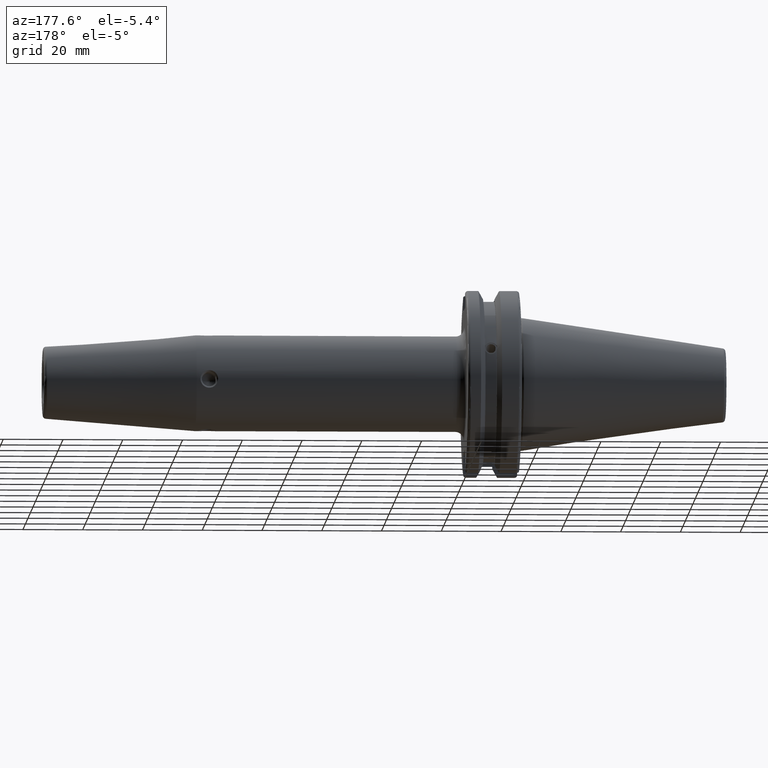
[diagram: clean part render]
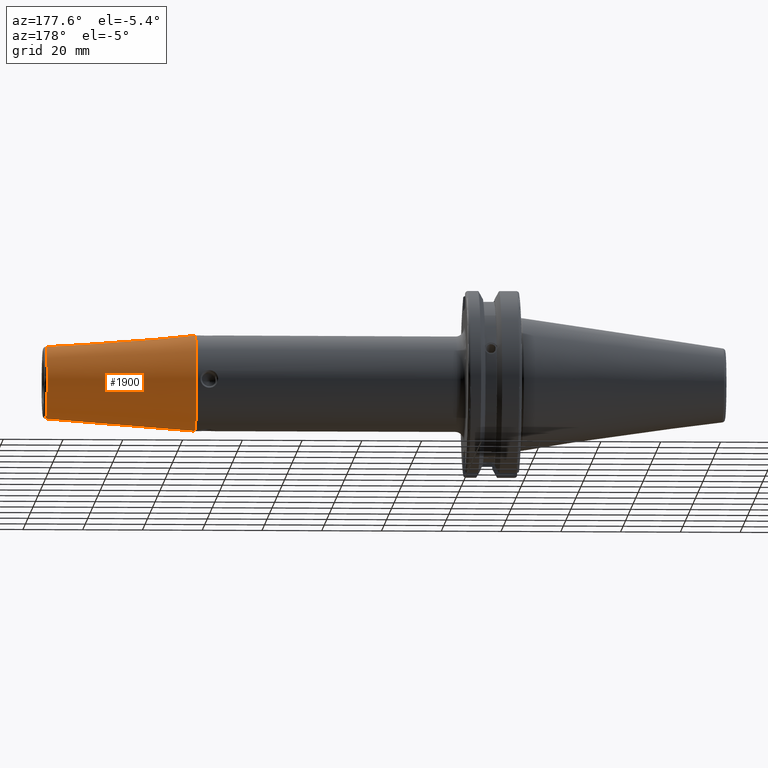
[diagram: same view with one face highlighted and labeled with its STEP entity id]
A machine part, auxiliary view. The second image highlights one B-rep face of the part: STEP entity #1900.
In plain terms, the highlighted conical surface has half-angle 4.5 deg.
Its self-contained STEP definition (entity closure, byte-faithful):
#40=FACE_BOUND('',#272,.T.);
#130=CONICAL_SURFACE('',#2047,14.,0.0785398163397452);
#158=FACE_OUTER_BOUND('',#271,.T.);
#271=EDGE_LOOP('',(#1313,#1314,#1315,#1316,#1317));
#272=EDGE_LOOP('',(#1318,#1319));
#400=LINE('',#3063,#518);
#518=VECTOR('',#2293,14.);
#639=CIRCLE('',#2045,12.0725268420749);
#640=CIRCLE('',#2046,12.0725268420749);
#641=CIRCLE('',#2048,16.);
#726=B_SPLINE_CURVE_WITH_KNOTS('',3,(#2974,#2975,#2976,#2977,#2978,#2979,
#2980,#2981,#2982,#2983),.UNSPECIFIED.,.F.,.F.,(4,2,2,2,4),(0.,0.0748674618662595,
0.149734923732519,0.224614840567834,0.29949475740315),.UNSPECIFIED.);
#727=B_SPLINE_CURVE_WITH_KNOTS('',3,(#2984,#2985,#2986,#2987,#2988,#2989,
#2990,#2991,#2992,#2993,#2994,#2995,#2996,#2997,#2998,#2999,#3000,#3001,
#3002,#3003,#3004,#3005,#3006,#3007,#3008,#3009),.UNSPECIFIED.,.F.,.F.,
(4,2,2,2,2,2,2,2,2,2,2,2,4),(0.29949475740315,0.374374674238465,0.449254591073781,
0.52412205294004,0.5989895148063,0.675303827779073,0.751618140751846,0.827729436244573,
0.903840731737301,0.979952027230028,1.05606332272275,1.13237763569553,1.2086919486683),
 .UNSPECIFIED.);
#783=VERTEX_POINT('',#2972);
#784=VERTEX_POINT('',#2973);
#794=VERTEX_POINT('',#3056);
#795=VERTEX_POINT('',#3058);
#796=VERTEX_POINT('',#3062);
#982=EDGE_CURVE('',#783,#784,#726,.T.);
#983=EDGE_CURVE('',#784,#783,#727,.T.);
#999=EDGE_CURVE('',#794,#795,#639,.T.);
#1000=EDGE_CURVE('',#795,#794,#640,.T.);
#1001=EDGE_CURVE('',#795,#796,#400,.T.);
#1002=EDGE_CURVE('',#796,#796,#641,.T.);
#1313=ORIENTED_EDGE('',*,*,#1000,.F.);
#1314=ORIENTED_EDGE('',*,*,#1001,.T.);
#1315=ORIENTED_EDGE('',*,*,#1002,.T.);
#1316=ORIENTED_EDGE('',*,*,#1001,.F.);
#1317=ORIENTED_EDGE('',*,*,#999,.F.);
#1318=ORIENTED_EDGE('',*,*,#982,.T.);
#1319=ORIENTED_EDGE('',*,*,#983,.T.);
#1900=ADVANCED_FACE('',(#158,#40),#130,.T.);
#2045=AXIS2_PLACEMENT_3D('',#3059,#2287,#2288);
#2046=AXIS2_PLACEMENT_3D('',#3060,#2289,#2290);
#2047=AXIS2_PLACEMENT_3D('',#3061,#2291,#2292);
#2048=AXIS2_PLACEMENT_3D('',#3064,#2294,#2295);
#2287=DIRECTION('center_axis',(1.,0.,0.));
#2288=DIRECTION('ref_axis',(0.,-1.,3.06161699786838E-17));
#2289=DIRECTION('center_axis',(1.,0.,0.));
#2290=DIRECTION('ref_axis',(0.,-1.,3.06161699786838E-17));
#2291=DIRECTION('center_axis',(-1.,0.,0.));
#2292=DIRECTION('ref_axis',(0.,1.,0.));
#2293=DIRECTION('',(-0.996917333733128,-0.0784590957278454,-9.60846804471016E-18));
#2294=DIRECTION('center_axis',(1.,0.,0.));
#2295=DIRECTION('ref_axis',(0.,0.,-1.));
#2972=CARTESIAN_POINT('',(114.020153726902,-9.53903033601559,12.367313853378));
#2973=CARTESIAN_POINT('',(116.,-10.9339038400509,10.9339038400509));
#2974=CARTESIAN_POINT('Ctrl Pts',(114.020153726902,-9.53903033601559,12.367313853378));
#2975=CARTESIAN_POINT('Ctrl Pts',(114.268942628459,-9.52707189096271,12.3518097782301));
#2976=CARTESIAN_POINT('Ctrl Pts',(114.534382625529,-9.5538566693808,12.3050854651883));
#2977=CARTESIAN_POINT('Ctrl Pts',(115.022484776038,-9.68972517788116,12.1492859372061));
#2978=CARTESIAN_POINT('Ctrl Pts',(115.245133549922,-9.79856818182654,12.0399590698605));
#2979=CARTESIAN_POINT('Ctrl Pts',(115.596433220623,-10.0525139804134,11.7924540985275));
#2980=CARTESIAN_POINT('Ctrl Pts',(115.748633321661,-10.2145816131568,11.6376583005966));
#2981=CARTESIAN_POINT('Ctrl Pts',(115.950417994528,-10.5671484545692,11.2967535179709));
#2982=CARTESIAN_POINT('Ctrl Pts',(116.,-10.7574101834878,11.110397496614));
#2983=CARTESIAN_POINT('Ctrl Pts',(116.,-10.9339038400509,10.9339038400509));
#2984=CARTESIAN_POINT('Ctrl Pts',(116.,-10.9339038400509,10.9339038400509));
#2985=CARTESIAN_POINT('Ctrl Pts',(116.,-11.110397496614,10.7574101834878));
#2986=CARTESIAN_POINT('Ctrl Pts',(115.950417994528,-11.2967535179709,10.5671484545692));
#2987=CARTESIAN_POINT('Ctrl Pts',(115.748633321661,-11.6376583005967,10.2145816131568));
#2988=CARTESIAN_POINT('Ctrl Pts',(115.596433220623,-11.7924540985275,10.0525139804134));
#2989=CARTESIAN_POINT('Ctrl Pts',(115.245133549922,-12.0399590698605,9.79856818182653));
#2990=CARTESIAN_POINT('Ctrl Pts',(115.022484776038,-12.1492859372061,9.68972517788116));
#2991=CARTESIAN_POINT('Ctrl Pts',(114.534382625529,-12.3050854651883,9.55385666938079));
#2992=CARTESIAN_POINT('Ctrl Pts',(114.268942628459,-12.3518097782301,9.5270718909627));
#2993=CARTESIAN_POINT('Ctrl Pts',(113.76655685552,-12.3831175525244,9.5512198839939));
#2994=CARTESIAN_POINT('Ctrl Pts',(113.496366470126,-12.3686524410359,9.60521638238081));
#2995=CARTESIAN_POINT('Ctrl Pts',(112.999326971937,-12.270839084647,9.79269870491093));
#2996=CARTESIAN_POINT('Ctrl Pts',(112.772421045976,-12.1872570327809,9.92591175183341));
#2997=CARTESIAN_POINT('Ctrl Pts',(112.413916246008,-11.9790982064529,10.2196717662068));
#2998=CARTESIAN_POINT('Ctrl Pts',(112.258198702363,-11.8406699833833,10.3997410073626));
#2999=CARTESIAN_POINT('Ctrl Pts',(112.051222375068,-11.5192096610287,10.7785670859448));
#3000=CARTESIAN_POINT('Ctrl Pts',(112.,-11.3359019262901,10.9771098385048));
#3001=CARTESIAN_POINT('Ctrl Pts',(112.,-10.9771098385048,11.3359019262901));
#3002=CARTESIAN_POINT('Ctrl Pts',(112.051222375068,-10.7785670859448,11.5192096610287));
#3003=CARTESIAN_POINT('Ctrl Pts',(112.258198702363,-10.3997410073626,11.8406699833833));
#3004=CARTESIAN_POINT('Ctrl Pts',(112.413916246008,-10.2196717662068,11.9790982064529));
#3005=CARTESIAN_POINT('Ctrl Pts',(112.772421045976,-9.92591175183341,12.1872570327809));
#3006=CARTESIAN_POINT('Ctrl Pts',(112.999326971937,-9.79269870491095,12.270839084647));
#3007=CARTESIAN_POINT('Ctrl Pts',(113.496366470126,-9.60521638238082,12.3686524410359));
#3008=CARTESIAN_POINT('Ctrl Pts',(113.76655685552,-9.55121988399391,12.3831175525244));
#3009=CARTESIAN_POINT('Ctrl Pts',(114.020153726902,-9.53903033601559,12.367313853378));
#3056=CARTESIAN_POINT('',(159.078459095728,-1.47845813547676E-15,12.0725268420749));
#3058=CARTESIAN_POINT('',(159.078459095728,-12.0725268420749,-1.47845813547676E-15));
#3059=CARTESIAN_POINT('Origin',(159.078459095728,0.,-1.84807266934595E-15));
#3060=CARTESIAN_POINT('Origin',(159.078459095728,0.,-1.84807266934595E-15));
#3061=CARTESIAN_POINT('Origin',(134.587590527651,0.,0.));
#3062=CARTESIAN_POINT('',(109.175181055301,-16.,-1.95943487863577E-15));
#3063=CARTESIAN_POINT('',(134.587590527651,-14.,-1.7145055188063E-15));
#3064=CARTESIAN_POINT('Origin',(109.175181055301,0.,0.));